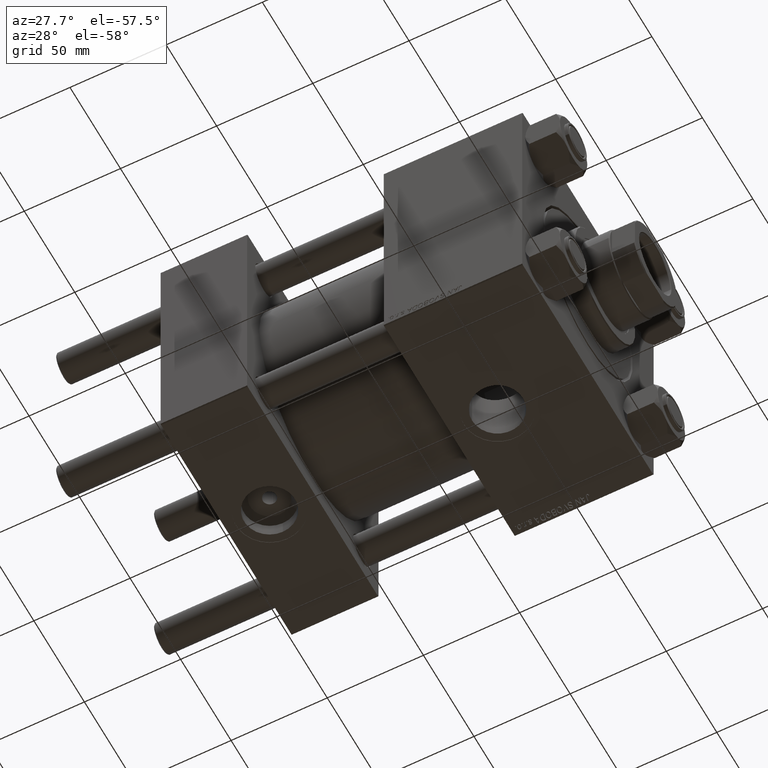
[diagram: clean part render]
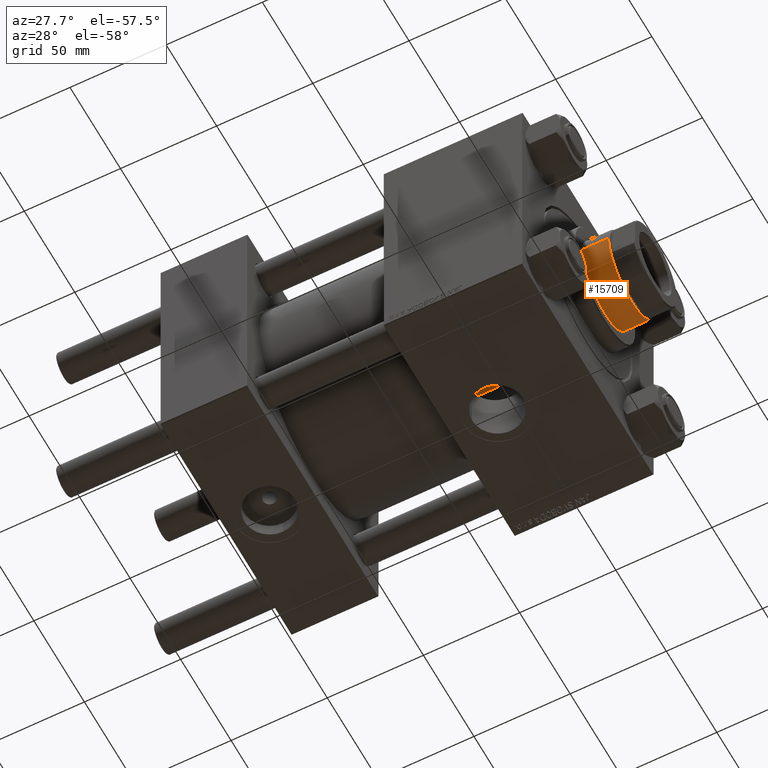
[diagram: same view with one face highlighted and labeled with its STEP entity id]
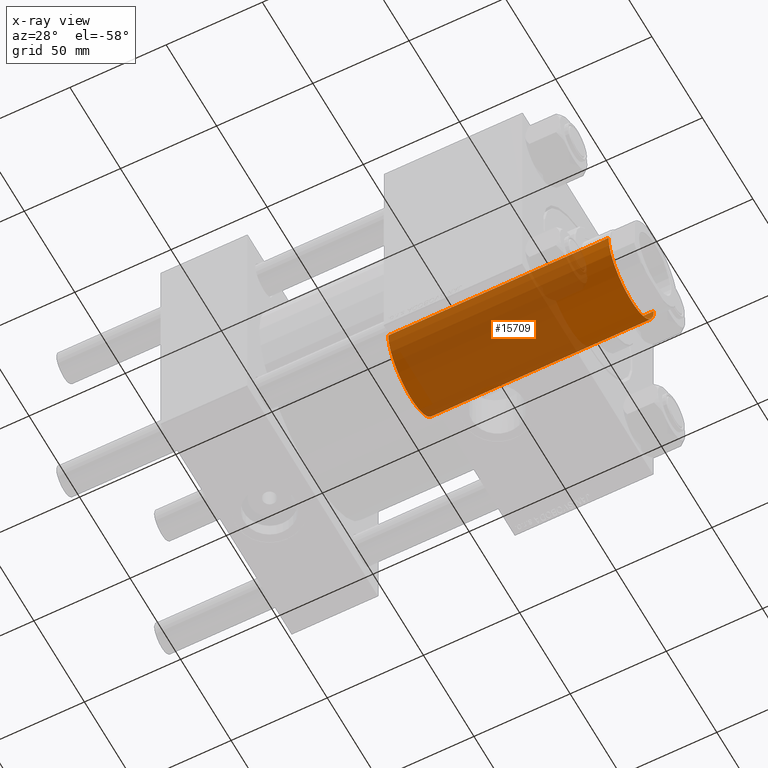
[diagram: x-ray of the same camera — body ghosted, the highlighted face saturated]
A machine part, auxiliary view. The second image highlights one B-rep face of the part: STEP entity #15709.
The next image is the same camera in x-ray: the body ghosted, the highlighted face saturated — about 74% of this face is hidden behind the body in this view.
In plain terms, the highlighted cylindrical surface (partial cylindrical patch) has radius 22.5 mm, axis along (-1, 0, 0).
Its self-contained STEP definition (entity closure, byte-faithful):
#1745 = EDGE_LOOP ( 'NONE', ( #24271, #12488, #19362, #41706 ) ) ;
#3917 = EDGE_CURVE ( 'NONE', #43715, #49321, #23142, .T. ) ;
#4789 = CARTESIAN_POINT ( 'NONE',  ( -22.50000000000000355, 0.000000000000000000, 165.4999999999999716 ) ) ;
#6343 = AXIS2_PLACEMENT_3D ( 'NONE', #39288, #12080, #7257 ) ;
#6874 = CARTESIAN_POINT ( 'NONE',  ( 22.50000000000000355, 2.755455298081545172E-15, 51.00000000000000000 ) ) ;
#7257 = DIRECTION ( 'NONE',  ( -1.000000000000000000, 0.000000000000000000, 0.000000000000000000 ) ) ;
#12080 = DIRECTION ( 'NONE',  ( -0.000000000000000000, -0.000000000000000000, -1.000000000000000000 ) ) ;
#12488 = ORIENTED_EDGE ( 'NONE', *, *, #29376, .T. ) ;
#12818 = DIRECTION ( 'NONE',  ( 0.000000000000000000, 0.000000000000000000, -1.000000000000000000 ) ) ;
#14136 = DIRECTION ( 'NONE',  ( 1.000000000000000000, 0.000000000000000000, 0.000000000000000000 ) ) ;
#14862 = VECTOR ( 'NONE', #19890, 1000.000000000000000 ) ;
#15301 = VECTOR ( 'NONE', #36357, 1000.000000000000000 ) ;
#15709 = ADVANCED_FACE ( 'NONE', ( #38535 ), #46928, .T. ) ;
#15801 = CARTESIAN_POINT ( 'NONE',  ( 22.50000000000000355, 2.755455298081545172E-15, 166.0000000000000000 ) ) ;
#16574 = VERTEX_POINT ( 'NONE', #23665 ) ;
#17536 = EDGE_CURVE ( 'NONE', #46702, #49321, #27738, .T. ) ;
#19362 = ORIENTED_EDGE ( 'NONE', *, *, #3917, .T. ) ;
#19890 = DIRECTION ( 'NONE',  ( -0.000000000000000000, -0.000000000000000000, -1.000000000000000000 ) ) ;
#22046 = CARTESIAN_POINT ( 'NONE',  ( 0.000000000000000000, 0.000000000000000000, 51.00000000000000000 ) ) ;
#23142 = CIRCLE ( 'NONE', #31270, 22.50000000000000355 ) ;
#23665 = CARTESIAN_POINT ( 'NONE',  ( 22.50000000000000355, 2.755455298081545172E-15, 165.4999999999999716 ) ) ;
#23858 = AXIS2_PLACEMENT_3D ( 'NONE', #24278, #12818, #35726 ) ;
#24271 = ORIENTED_EDGE ( 'NONE', *, *, #35032, .T. ) ;
#24278 = CARTESIAN_POINT ( 'NONE',  ( 0.000000000000000000, 0.000000000000000000, 165.4999999999999716 ) ) ;
#27738 = LINE ( 'NONE', #39919, #15301 ) ;
#29376 = EDGE_CURVE ( 'NONE', #16574, #43715, #43036, .T. ) ;
#31270 = AXIS2_PLACEMENT_3D ( 'NONE', #22046, #45676, #14136 ) ;
#33614 = CIRCLE ( 'NONE', #23858, 22.50000000000000355 ) ;
#35032 = EDGE_CURVE ( 'NONE', #46702, #16574, #33614, .T. ) ;
#35726 = DIRECTION ( 'NONE',  ( 1.000000000000000000, 0.000000000000000000, 0.000000000000000000 ) ) ;
#36357 = DIRECTION ( 'NONE',  ( -0.000000000000000000, -0.000000000000000000, -1.000000000000000000 ) ) ;
#38535 = FACE_OUTER_BOUND ( 'NONE', #1745, .T. ) ;
#39288 = CARTESIAN_POINT ( 'NONE',  ( 0.000000000000000000, 0.000000000000000000, 166.0000000000000000 ) ) ;
#39919 = CARTESIAN_POINT ( 'NONE',  ( -22.50000000000000355, 0.000000000000000000, 166.0000000000000000 ) ) ;
#40470 = CARTESIAN_POINT ( 'NONE',  ( -22.50000000000000355, 0.000000000000000000, 51.00000000000000000 ) ) ;
#41706 = ORIENTED_EDGE ( 'NONE', *, *, #17536, .F. ) ;
#43036 = LINE ( 'NONE', #15801, #14862 ) ;
#43715 = VERTEX_POINT ( 'NONE', #6874 ) ;
#45676 = DIRECTION ( 'NONE',  ( 0.000000000000000000, 0.000000000000000000, 1.000000000000000000 ) ) ;
#46702 = VERTEX_POINT ( 'NONE', #4789 ) ;
#46928 = CYLINDRICAL_SURFACE ( 'NONE', #6343, 22.50000000000000355 ) ;
#49321 = VERTEX_POINT ( 'NONE', #40470 ) ;